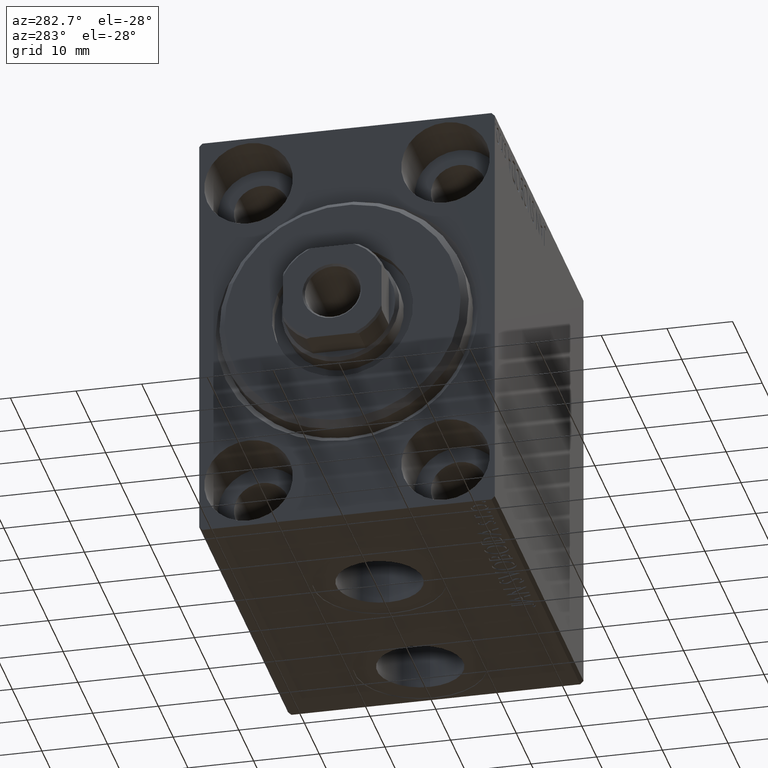
[diagram: clean part render]
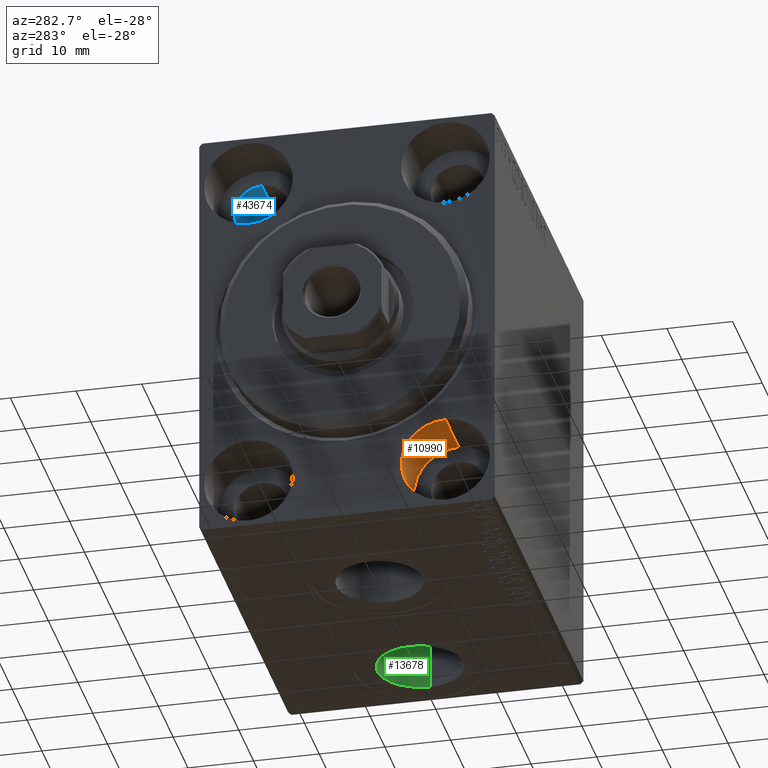
[diagram: same view with three faces highlighted in distinct colors, each labeled with its STEP entity id]
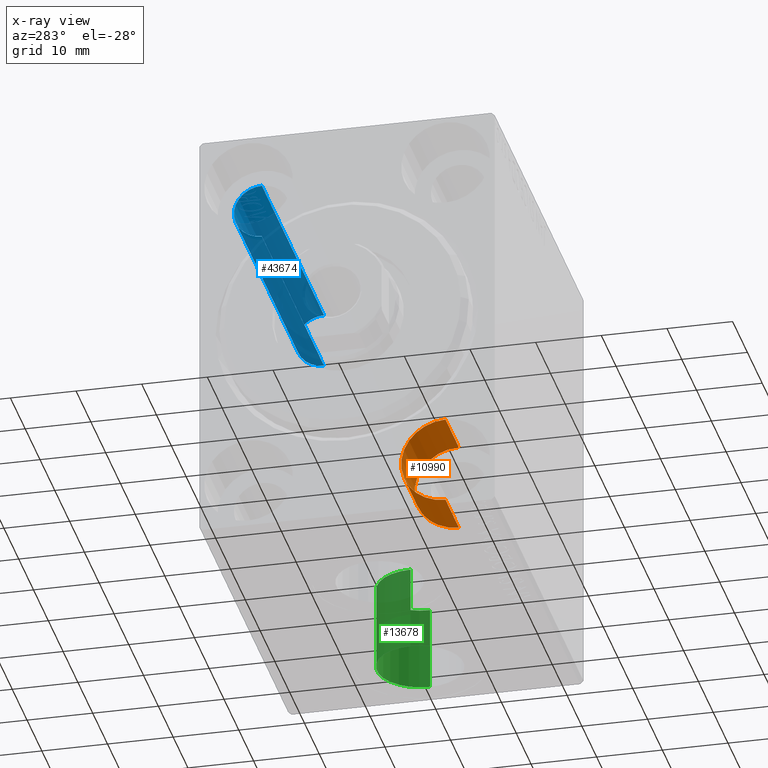
[diagram: x-ray of the same camera — body ghosted, the three highlighted faces saturated]
A machine part, auxiliary view with three faces highlighted in distinct colors.
The next image is the same camera in x-ray (body ghosted, the three faces saturated) — at least one of them is partly hidden behind the body in this view.
Their STEP definitions:

[orange] entity #10990 — the highlighted cylindrical surface (partial cylindrical patch) has radius 6.75 mm, axis along (-1, -0, -0).
#1358 = VERTEX_POINT ( 'NONE', #16867 ) ;
#1479 = DIRECTION ( 'NONE',  ( 0.000000000000000000, 0.000000000000000000, 1.000000000000000000 ) ) ;
#1981 = EDGE_CURVE ( 'NONE', #1358, #22198, #13959, .T. ) ;
#3685 = CIRCLE ( 'NONE', #4386, 6.749999999999999112 ) ;
#4386 = AXIS2_PLACEMENT_3D ( 'NONE', #17183, #27687, #28151 ) ;
#7512 = DIRECTION ( 'NONE',  ( 0.000000000000000000, 0.000000000000000000, 1.000000000000000000 ) ) ;
#7641 = AXIS2_PLACEMENT_3D ( 'NONE', #38836, #21019, #7512 ) ;
#8132 = EDGE_CURVE ( 'NONE', #1358, #43299, #3685, .T. ) ;
#9224 = ORIENTED_EDGE ( 'NONE', *, *, #14710, .F. ) ;
#10670 = FACE_OUTER_BOUND ( 'NONE', #35549, .T. ) ;
#10990 = ADVANCED_FACE ( 'NONE', ( #10670 ), #45152, .F. ) ;
#13959 = LINE ( 'NONE', #23997, #29170 ) ;
#14710 = EDGE_CURVE ( 'NONE', #43299, #25054, #39653, .T. ) ;
#15004 = CARTESIAN_POINT ( 'NONE',  ( 9.000000000000000000, -15.00000000000000355, -25.00000000000000000 ) ) ;
#15030 = ORIENTED_EDGE ( 'NONE', *, *, #1981, .T. ) ;
#15927 = CARTESIAN_POINT ( 'NONE',  ( 9.000000000000000000, -15.00000000000000355, -31.75000000000000000 ) ) ;
#16684 = ORIENTED_EDGE ( 'NONE', *, *, #40496, .T. ) ;
#16867 = CARTESIAN_POINT ( 'NONE',  ( 9.000000000000000000, -15.00000000000000355, -18.25000000000000355 ) ) ;
#17183 = CARTESIAN_POINT ( 'NONE',  ( 9.000000000000000000, -15.00000000000000355, -25.00000000000000000 ) ) ;
#19168 = AXIS2_PLACEMENT_3D ( 'NONE', #15004, #40103, #1479 ) ;
#20353 = VECTOR ( 'NONE', #39877, 1000.000000000000000 ) ;
#20649 = CARTESIAN_POINT ( 'NONE',  ( 0.000000000000000000, -15.00000000000000355, -18.25000000000000355 ) ) ;
#21019 = DIRECTION ( 'NONE',  ( -1.000000000000000000, 0.000000000000000000, 0.000000000000000000 ) ) ;
#22198 = VERTEX_POINT ( 'NONE', #20649 ) ;
#23997 = CARTESIAN_POINT ( 'NONE',  ( 9.000000000000000000, -15.00000000000000355, -18.25000000000000355 ) ) ;
#25054 = VERTEX_POINT ( 'NONE', #33549 ) ;
#27368 = CIRCLE ( 'NONE', #7641, 6.749999999999999112 ) ;
#27687 = DIRECTION ( 'NONE',  ( -1.000000000000000000, 0.000000000000000000, 0.000000000000000000 ) ) ;
#27895 = DIRECTION ( 'NONE',  ( -1.000000000000000000, -0.000000000000000000, -0.000000000000000000 ) ) ;
#28151 = DIRECTION ( 'NONE',  ( 0.000000000000000000, 0.000000000000000000, 1.000000000000000000 ) ) ;
#29170 = VECTOR ( 'NONE', #27895, 1000.000000000000000 ) ;
#29456 = ORIENTED_EDGE ( 'NONE', *, *, #8132, .F. ) ;
#33549 = CARTESIAN_POINT ( 'NONE',  ( 0.000000000000000000, -15.00000000000000355, -31.75000000000000000 ) ) ;
#35549 = EDGE_LOOP ( 'NONE', ( #9224, #29456, #15030, #16684 ) ) ;
#38836 = CARTESIAN_POINT ( 'NONE',  ( 0.000000000000000000, -15.00000000000000355, -25.00000000000000000 ) ) ;
#39653 = LINE ( 'NONE', #40556, #20353 ) ;
#39877 = DIRECTION ( 'NONE',  ( -1.000000000000000000, -0.000000000000000000, -0.000000000000000000 ) ) ;
#40103 = DIRECTION ( 'NONE',  ( -1.000000000000000000, -0.000000000000000000, -0.000000000000000000 ) ) ;
#40496 = EDGE_CURVE ( 'NONE', #22198, #25054, #27368, .T. ) ;
#40556 = CARTESIAN_POINT ( 'NONE',  ( 9.000000000000000000, -15.00000000000000355, -31.75000000000000000 ) ) ;
#43299 = VERTEX_POINT ( 'NONE', #15927 ) ;
#45152 = CYLINDRICAL_SURFACE ( 'NONE', #19168, 6.749999999999999112 ) ;

[blue] entity #43674 — the highlighted cylindrical surface (edge-blend (fillet) strip) has radius 4.25 mm, axis along (-1, -0, -0).
#171 = CARTESIAN_POINT ( 'NONE',  ( 51.00000000000000000, 15.00000000000000355, 25.00000000000000000 ) ) ;
#1669 = VERTEX_POINT ( 'NONE', #21077 ) ;
#2107 = ORIENTED_EDGE ( 'NONE', *, *, #19130, .F. ) ;
#2614 = EDGE_CURVE ( 'NONE', #1669, #29758, #20424, .T. ) ;
#2649 = CARTESIAN_POINT ( 'NONE',  ( 51.00000000000000000, 15.00000000000000355, 20.75000000000000355 ) ) ;
#3200 = VERTEX_POINT ( 'NONE', #19864 ) ;
#3707 = EDGE_CURVE ( 'NONE', #1669, #3200, #29129, .T. ) ;
#3785 = DIRECTION ( 'NONE',  ( -1.000000000000000000, -0.000000000000000000, -0.000000000000000000 ) ) ;
#5915 = CIRCLE ( 'NONE', #26386, 4.249999999999996447 ) ;
#5961 = EDGE_LOOP ( 'NONE', ( #2107, #15103, #6136, #12876 ) ) ;
#6136 = ORIENTED_EDGE ( 'NONE', *, *, #3707, .T. ) ;
#6343 = DIRECTION ( 'NONE',  ( 0.000000000000000000, 0.000000000000000000, -1.000000000000000000 ) ) ;
#6754 = CARTESIAN_POINT ( 'NONE',  ( 60.00000000000000000, 15.00000000000000355, 20.75000000000000355 ) ) ;
#9092 = CARTESIAN_POINT ( 'NONE',  ( 9.000000000000001776, 15.00000000000000355, 25.00000000000000000 ) ) ;
#11186 = CARTESIAN_POINT ( 'NONE',  ( 9.000000000000001776, 15.00000000000000355, 20.75000000000000355 ) ) ;
#12076 = DIRECTION ( 'NONE',  ( -1.000000000000000000, 0.000000000000000000, 0.000000000000000000 ) ) ;
#12420 = VECTOR ( 'NONE', #18623, 1000.000000000000000 ) ;
#12876 = ORIENTED_EDGE ( 'NONE', *, *, #25877, .T. ) ;
#14134 = DIRECTION ( 'NONE',  ( -1.000000000000000000, -0.000000000000000000, -0.000000000000000000 ) ) ;
#14705 = CYLINDRICAL_SURFACE ( 'NONE', #20984, 4.249999999999996447 ) ;
#14759 = CARTESIAN_POINT ( 'NONE',  ( 60.00000000000000000, 15.00000000000000355, 29.25000000000000000 ) ) ;
#15103 = ORIENTED_EDGE ( 'NONE', *, *, #2614, .F. ) ;
#18623 = DIRECTION ( 'NONE',  ( -1.000000000000000000, -0.000000000000000000, -0.000000000000000000 ) ) ;
#19130 = EDGE_CURVE ( 'NONE', #29758, #26566, #41269, .T. ) ;
#19864 = CARTESIAN_POINT ( 'NONE',  ( 9.000000000000001776, 15.00000000000000355, 29.25000000000000000 ) ) ;
#20424 = CIRCLE ( 'NONE', #39398, 4.249999999999996447 ) ;
#20984 = AXIS2_PLACEMENT_3D ( 'NONE', #39134, #24760, #35711 ) ;
#21077 = CARTESIAN_POINT ( 'NONE',  ( 51.00000000000000000, 15.00000000000000355, 29.25000000000000000 ) ) ;
#24760 = DIRECTION ( 'NONE',  ( -1.000000000000000000, -0.000000000000000000, -0.000000000000000000 ) ) ;
#25212 = FACE_OUTER_BOUND ( 'NONE', #5961, .T. ) ;
#25877 = EDGE_CURVE ( 'NONE', #3200, #26566, #5915, .T. ) ;
#26386 = AXIS2_PLACEMENT_3D ( 'NONE', #9092, #12076, #36528 ) ;
#26566 = VERTEX_POINT ( 'NONE', #11186 ) ;
#29129 = LINE ( 'NONE', #14759, #12420 ) ;
#29758 = VERTEX_POINT ( 'NONE', #2649 ) ;
#35711 = DIRECTION ( 'NONE',  ( 0.000000000000000000, 0.000000000000000000, 1.000000000000000000 ) ) ;
#36528 = DIRECTION ( 'NONE',  ( 0.000000000000000000, 0.000000000000000000, 1.000000000000000000 ) ) ;
#38684 = VECTOR ( 'NONE', #3785, 1000.000000000000000 ) ;
#39134 = CARTESIAN_POINT ( 'NONE',  ( 60.00000000000000000, 15.00000000000000355, 25.00000000000000000 ) ) ;
#39398 = AXIS2_PLACEMENT_3D ( 'NONE', #171, #14134, #6343 ) ;
#41269 = LINE ( 'NONE', #6754, #38684 ) ;
#43674 = ADVANCED_FACE ( 'NONE', ( #25212 ), #14705, .F. ) ;

[green] entity #13678 — the highlighted cylindrical surface (partial cylindrical patch) has radius 6.58 mm, axis along (-0, -0, -1).
#1185 = VERTEX_POINT ( 'NONE', #35419 ) ;
#1516 = EDGE_CURVE ( 'NONE', #4511, #35779, #25075, .T. ) ;
#1661 = AXIS2_PLACEMENT_3D ( 'NONE', #6992, #9749, #10200 ) ;
#4511 = VERTEX_POINT ( 'NONE', #5116 ) ;
#5116 = CARTESIAN_POINT ( 'NONE',  ( 42.91999999999999460, -6.655964947265702476E-15, -19.50000000000000355 ) ) ;
#6992 = CARTESIAN_POINT ( 'NONE',  ( 49.49999999999999289, -6.655964947265702476E-15, -32.40000000000000568 ) ) ;
#8831 = ORIENTED_EDGE ( 'NONE', *, *, #28960, .F. ) ;
#9749 = DIRECTION ( 'NONE',  ( 0.000000000000000000, 0.000000000000000000, -1.000000000000000000 ) ) ;
#10179 = ORIENTED_EDGE ( 'NONE', *, *, #39017, .F. ) ;
#10200 = DIRECTION ( 'NONE',  ( -1.000000000000000000, 0.000000000000000000, 0.000000000000000000 ) ) ;
#10527 = DIRECTION ( 'NONE',  ( 0.000000000000000000, 0.000000000000000000, -1.000000000000000000 ) ) ;
#10586 = VERTEX_POINT ( 'NONE', #23976 ) ;
#13678 = ADVANCED_FACE ( 'NONE', ( #39196 ), #32354, .F. ) ;
#14325 = CARTESIAN_POINT ( 'NONE',  ( 49.49999999999999289, -6.655964947265702476E-15, -19.50000000000000355 ) ) ;
#14992 = DIRECTION ( 'NONE',  ( -1.000000000000000000, 0.000000000000000000, 0.000000000000000000 ) ) ;
#15274 = ORIENTED_EDGE ( 'NONE', *, *, #31063, .T. ) ;
#16072 = DIRECTION ( 'NONE',  ( -0.000000000000000000, -0.000000000000000000, -1.000000000000000000 ) ) ;
#16410 = AXIS2_PLACEMENT_3D ( 'NONE', #16488, #10527, #24477 ) ;
#16488 = CARTESIAN_POINT ( 'NONE',  ( 49.49999999999999289, -6.655964947265702476E-15, -19.50000000000000355 ) ) ;
#22187 = ORIENTED_EDGE ( 'NONE', *, *, #1516, .T. ) ;
#22212 = CARTESIAN_POINT ( 'NONE',  ( 42.91999999999999460, -6.655964947265702476E-15, -32.40000000000000568 ) ) ;
#23228 = AXIS2_PLACEMENT_3D ( 'NONE', #14325, #28924, #14992 ) ;
#23976 = CARTESIAN_POINT ( 'NONE',  ( 56.07999999999999829, -5.850147353426744223E-15, -19.50000000000000355 ) ) ;
#24400 = EDGE_LOOP ( 'NONE', ( #8831, #10179, #22187, #15274 ) ) ;
#24477 = DIRECTION ( 'NONE',  ( -1.000000000000000000, 0.000000000000000000, 0.000000000000000000 ) ) ;
#25075 = LINE ( 'NONE', #44157, #28463 ) ;
#28463 = VECTOR ( 'NONE', #16072, 1000.000000000000000 ) ;
#28924 = DIRECTION ( 'NONE',  ( -0.000000000000000000, -0.000000000000000000, -1.000000000000000000 ) ) ;
#28960 = EDGE_CURVE ( 'NONE', #10586, #1185, #40370, .T. ) ;
#31063 = EDGE_CURVE ( 'NONE', #35779, #1185, #35271, .T. ) ;
#32354 = CYLINDRICAL_SURFACE ( 'NONE', #23228, 6.580000000000002736 ) ;
#33001 = VECTOR ( 'NONE', #33066, 1000.000000000000000 ) ;
#33066 = DIRECTION ( 'NONE',  ( -0.000000000000000000, -0.000000000000000000, -1.000000000000000000 ) ) ;
#35271 = CIRCLE ( 'NONE', #1661, 6.580000000000002736 ) ;
#35419 = CARTESIAN_POINT ( 'NONE',  ( 56.07999999999999829, -5.850147353426744223E-15, -32.40000000000000568 ) ) ;
#35779 = VERTEX_POINT ( 'NONE', #22212 ) ;
#36096 = CIRCLE ( 'NONE', #16410, 6.580000000000002736 ) ;
#39017 = EDGE_CURVE ( 'NONE', #4511, #10586, #36096, .T. ) ;
#39196 = FACE_OUTER_BOUND ( 'NONE', #24400, .T. ) ;
#40370 = LINE ( 'NONE', #43778, #33001 ) ;
#43778 = CARTESIAN_POINT ( 'NONE',  ( 56.07999999999999829, -5.850147353426744223E-15, -19.50000000000000355 ) ) ;
#44157 = CARTESIAN_POINT ( 'NONE',  ( 42.91999999999999460, -6.655964947265702476E-15, -19.50000000000000355 ) ) ;